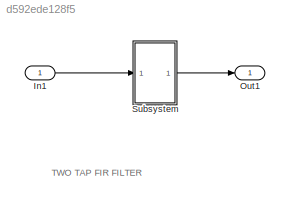
MODEL slx_d592ede128f5
KIND model
CONFIG AbsTol = auto
CONFIG EnableMultiTasking = off
CONFIG FixedStep = auto
CONFIG MaxStep = auto
CONFIG MinStep = auto
CONFIG RelTol = 1e-3
CONFIG SampleTimeConstraint = Unconstrained
CONFIG SolverName = VariableStepAuto
CONFIG StartTime = 0.0
CONFIG StopTime = 10.0
BLOCK [Inport] In1
  OutDataTypeStr = fixdt(1,8,6)
BLOCK [Outport] Out1
  OutDataTypeStr = fixdt(1,8,6)
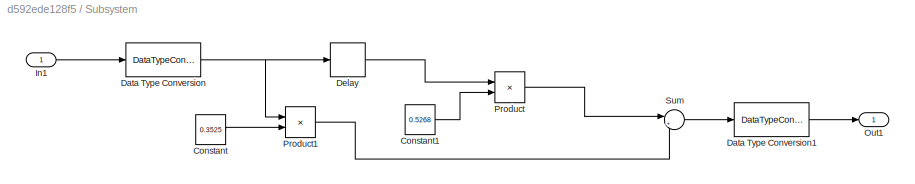
BLOCK [SubSystem] Subsystem
  Ports = [1, 1]
  RequestExecContextInheritance = off
BLOCK [Constant] Subsystem/Constant
  OutDataTypeStr = fixdt(1,8,6)
  Value = 0.3525
BLOCK [Constant] Subsystem/Constant1
  OutDataTypeStr = fixdt(1,8,6)
  Value = 0.5268
BLOCK [DataTypeConversion] Subsystem/Data Type Conversion
  OutDataTypeStr = fixdt(1,8,6)
  RndMeth = Floor
  SaturateOnIntegerOverflow = off
BLOCK [DataTypeConversion] Subsystem/Data Type Conversion1
  OutDataTypeStr = fixdt(1,8,6)
  RndMeth = Floor
  SaturateOnIntegerOverflow = off
BLOCK [Delay] Subsystem/Delay
  DelayLength = 1
  InputPortMap = u0
  Ports = [1, 1]
BLOCK [Inport] Subsystem/In1
BLOCK [Outport] Subsystem/Out1
BLOCK [Product] Subsystem/Product
  OutDataTypeStr = fixdt(1,8,6)
  Ports = [2, 1]
BLOCK [Product] Subsystem/Product1
  OutDataTypeStr = fixdt(1,8,6)
  Ports = [2, 1]
BLOCK [Sum] Subsystem/Sum
  Inputs = |++
  Ports = [2, 1]
ANNOTATION (root): TWO TAP FIR FILTER
LINE In1:1 -> Subsystem:1
LINE Subsystem/Constant1:1 -> Subsystem/Product:2
LINE Subsystem/Constant:1 -> Subsystem/Product1:2
LINE Subsystem/Data Type Conversion1:1 -> Subsystem/Out1:1
NET Subsystem/Data Type Conversion:1 -> Subsystem/Delay:1, Subsystem/Product1:1
LINE Subsystem/Delay:1 -> Subsystem/Product:1
LINE Subsystem/In1:1 -> Subsystem/Data Type Conversion:1
LINE Subsystem/Product1:1 -> Subsystem/Sum:2
LINE Subsystem/Product:1 -> Subsystem/Sum:1
LINE Subsystem/Sum:1 -> Subsystem/Data Type Conversion1:1
LINE Subsystem:1 -> Out1:1
note: NET lines group one-source signal fan-out (src -> all destinations, sorted); 1:1 wires keep LINE
